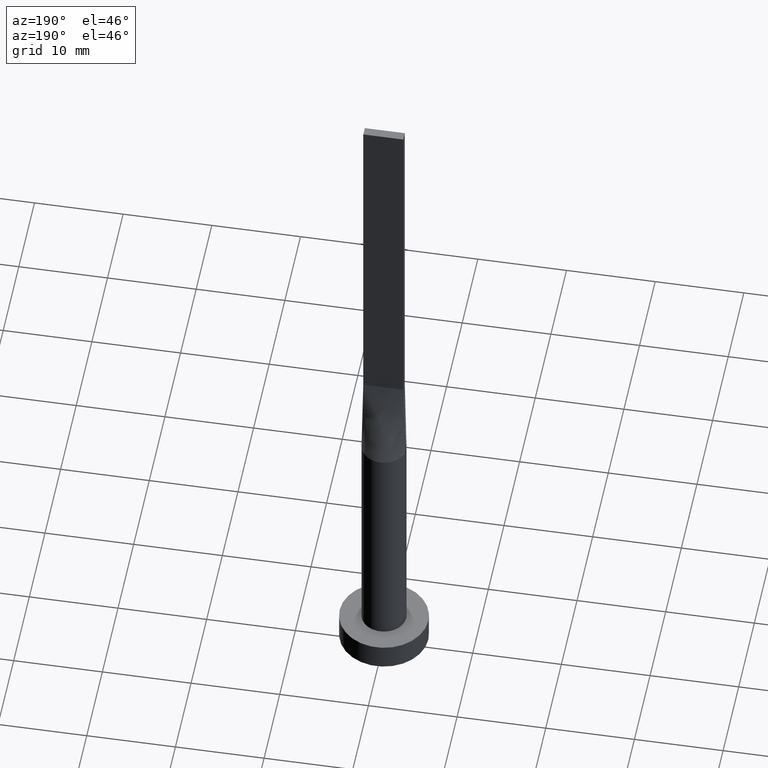
[diagram: clean part render]
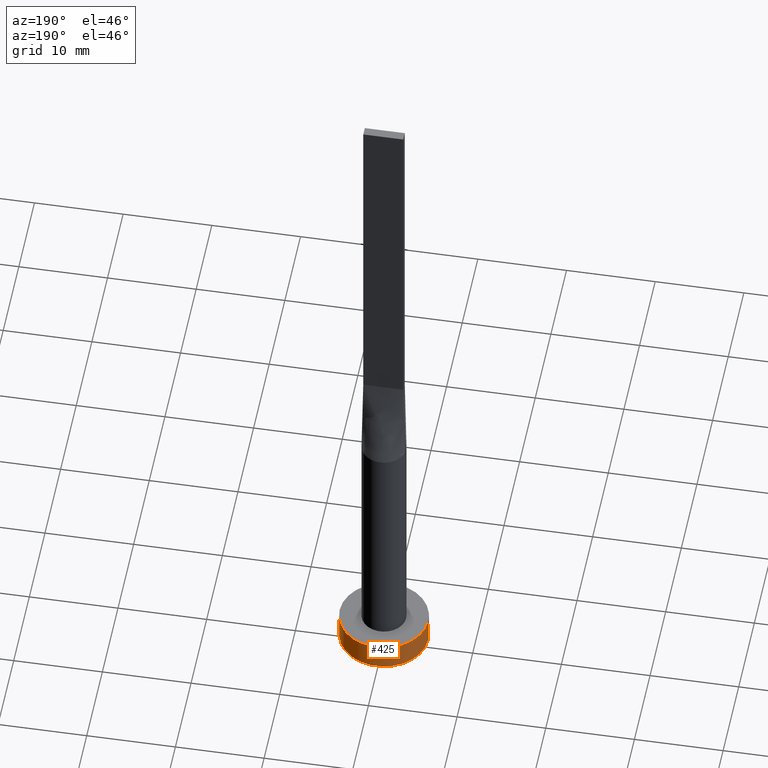
[diagram: same view with one face highlighted and labeled with its STEP entity id]
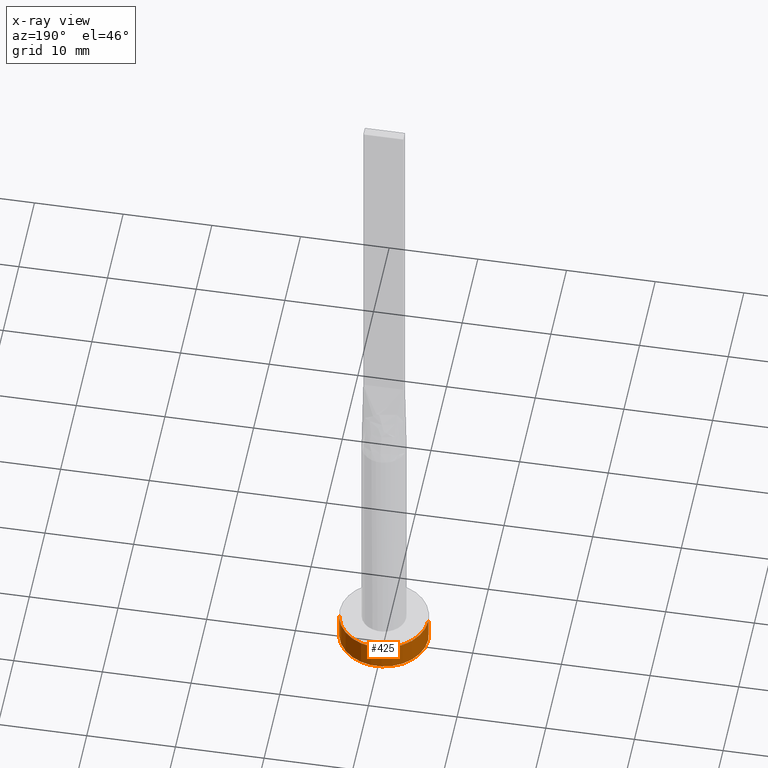
[diagram: x-ray of the same camera — body ghosted, the highlighted face saturated]
A machine part, auxiliary view. The second image highlights one B-rep face of the part: STEP entity #425.
The next image is the same camera in x-ray: the body ghosted, the highlighted face saturated — about 0% of this face is hidden behind the body in this view.
In plain terms, the highlighted cylindrical surface (partial cylindrical patch) has radius 5 mm, axis along (-0, -0, -1).
Its self-contained STEP definition (entity closure, byte-faithful):
#6 = CIRCLE ( 'NONE', #432, 5.000000000000000000 ) ;
#33 = DIRECTION ( 'NONE',  ( -0.000000000000000000, -0.000000000000000000, -1.000000000000000000 ) ) ;
#34 = EDGE_CURVE ( 'NONE', #195, #454, #550, .T. ) ;
#50 = DIRECTION ( 'NONE',  ( -0.000000000000000000, -0.000000000000000000, -1.000000000000000000 ) ) ;
#51 = AXIS2_PLACEMENT_3D ( 'NONE', #509, #374, #418 ) ;
#86 = EDGE_CURVE ( 'NONE', #222, #454, #485, .T. ) ;
#92 = CARTESIAN_POINT ( 'NONE',  ( 0.000000000000000000, 0.000000000000000000, 3.000000000000000000 ) ) ;
#103 = DIRECTION ( 'NONE',  ( -0.000000000000000000, -0.000000000000000000, -1.000000000000000000 ) ) ;
#148 = VECTOR ( 'NONE', #33, 1000.000000000000000 ) ;
#168 = ORIENTED_EDGE ( 'NONE', *, *, #34, .T. ) ;
#183 = EDGE_LOOP ( 'NONE', ( #498, #468, #168, #288 ) ) ;
#189 = LINE ( 'NONE', #319, #220 ) ;
#195 = VERTEX_POINT ( 'NONE', #357 ) ;
#220 = VECTOR ( 'NONE', #103, 1000.000000000000000 ) ;
#222 = VERTEX_POINT ( 'NONE', #489 ) ;
#224 = EDGE_CURVE ( 'NONE', #520, #222, #6, .T. ) ;
#260 = EDGE_CURVE ( 'NONE', #520, #195, #189, .T. ) ;
#271 = DIRECTION ( 'NONE',  ( 1.000000000000000000, 0.000000000000000000, 0.000000000000000000 ) ) ;
#288 = ORIENTED_EDGE ( 'NONE', *, *, #86, .F. ) ;
#319 = CARTESIAN_POINT ( 'NONE',  ( 5.000000000000000000, 6.123233995736766282E-16, 3.000000000000000000 ) ) ;
#357 = CARTESIAN_POINT ( 'NONE',  ( 5.000000000000000000, 6.123233995736766282E-16, 0.000000000000000000 ) ) ;
#358 = DIRECTION ( 'NONE',  ( -1.000000000000000000, 0.000000000000000000, 0.000000000000000000 ) ) ;
#362 = CARTESIAN_POINT ( 'NONE',  ( 5.000000000000000000, 6.123233995736766282E-16, 3.000000000000000000 ) ) ;
#374 = DIRECTION ( 'NONE',  ( 0.000000000000000000, 0.000000000000000000, 1.000000000000000000 ) ) ;
#418 = DIRECTION ( 'NONE',  ( 1.000000000000000000, 0.000000000000000000, 0.000000000000000000 ) ) ;
#420 = CARTESIAN_POINT ( 'NONE',  ( 0.000000000000000000, 0.000000000000000000, 3.000000000000000000 ) ) ;
#425 = ADVANCED_FACE ( 'NONE', ( #438 ), #567, .T. ) ;
#432 = AXIS2_PLACEMENT_3D ( 'NONE', #92, #443, #271 ) ;
#438 = FACE_OUTER_BOUND ( 'NONE', #183, .T. ) ;
#443 = DIRECTION ( 'NONE',  ( 0.000000000000000000, 0.000000000000000000, 1.000000000000000000 ) ) ;
#454 = VERTEX_POINT ( 'NONE', #540 ) ;
#468 = ORIENTED_EDGE ( 'NONE', *, *, #260, .T. ) ;
#485 = LINE ( 'NONE', #487, #148 ) ;
#487 = CARTESIAN_POINT ( 'NONE',  ( -5.000000000000000000, 0.000000000000000000, 3.000000000000000000 ) ) ;
#489 = CARTESIAN_POINT ( 'NONE',  ( -5.000000000000000000, 0.000000000000000000, 3.000000000000000000 ) ) ;
#498 = ORIENTED_EDGE ( 'NONE', *, *, #224, .F. ) ;
#500 = AXIS2_PLACEMENT_3D ( 'NONE', #420, #50, #358 ) ;
#509 = CARTESIAN_POINT ( 'NONE',  ( 0.000000000000000000, 0.000000000000000000, 0.000000000000000000 ) ) ;
#520 = VERTEX_POINT ( 'NONE', #362 ) ;
#540 = CARTESIAN_POINT ( 'NONE',  ( -5.000000000000000000, 0.000000000000000000, 0.000000000000000000 ) ) ;
#550 = CIRCLE ( 'NONE', #51, 5.000000000000000000 ) ;
#567 = CYLINDRICAL_SURFACE ( 'NONE', #500, 5.000000000000000000 ) ;